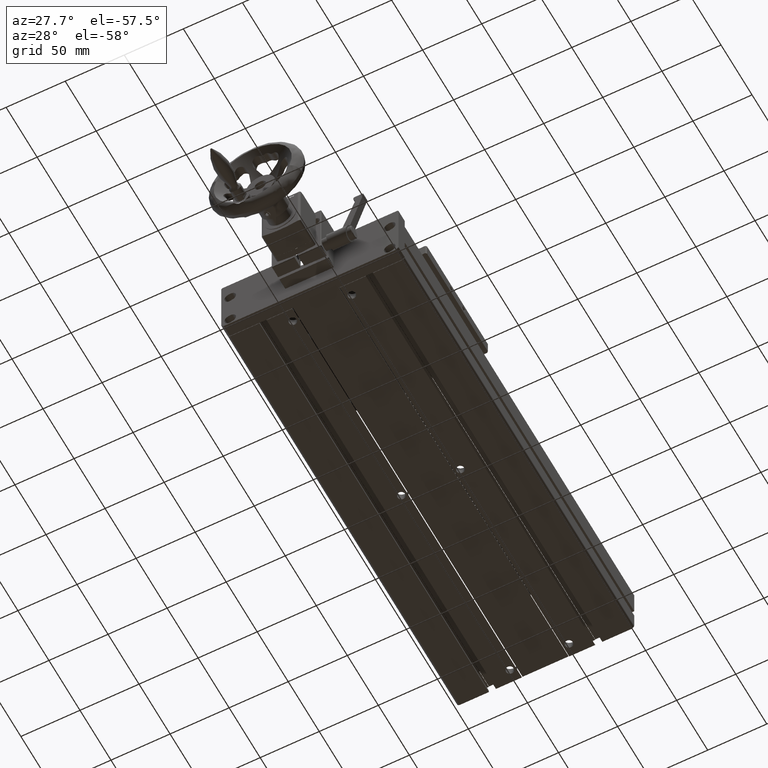
[diagram: clean part render]
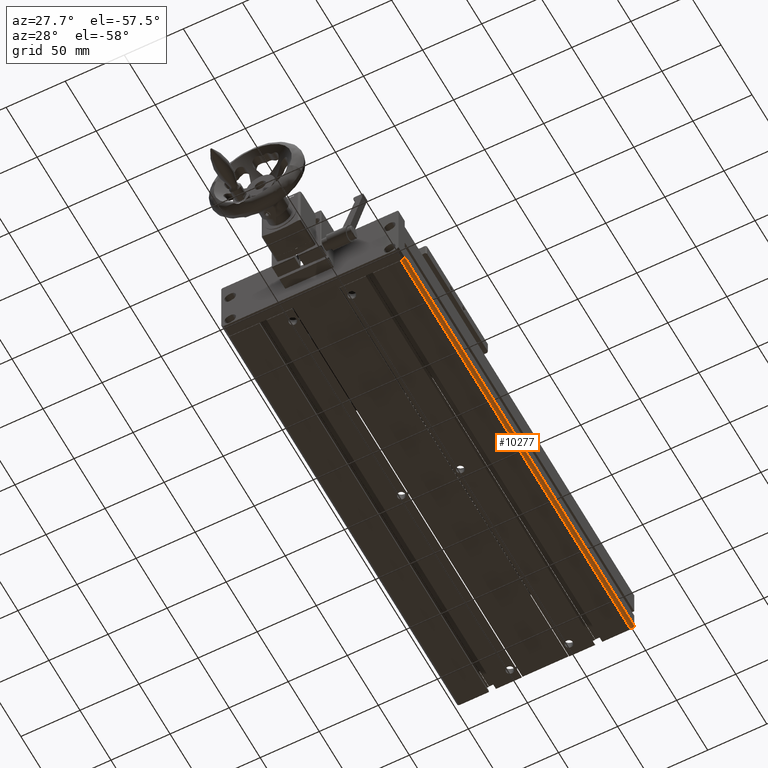
[diagram: same view with one face highlighted and labeled with its STEP entity id]
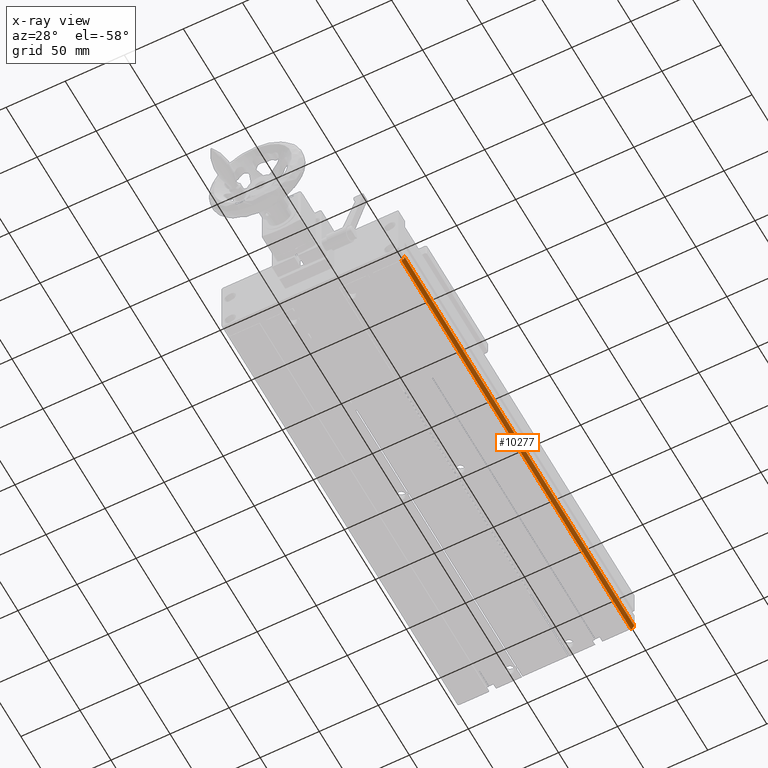
[diagram: x-ray of the same camera — body ghosted, the highlighted face saturated]
A machine part, auxiliary view. The second image highlights one B-rep face of the part: STEP entity #10277.
The next image is the same camera in x-ray: the body ghosted, the highlighted face saturated — about 0% of this face is hidden behind the body in this view.
In plain terms, the highlighted cylindrical surface (edge-blend (fillet) strip) has radius 3 mm, axis along (0, 1, -0).
Its self-contained STEP definition (entity closure, byte-faithful):
#480 = EDGE_CURVE ( 'NONE', #20785, #20923, #44237, .T. ) ;
#988 = AXIS2_PLACEMENT_3D ( 'NONE', #11728, #14206, #22059 ) ;
#1333 = CARTESIAN_POINT ( 'NONE',  ( 47.17352052019974451, -133.0472645979090487, -17.00000000000123634 ) ) ;
#2345 = ORIENTED_EDGE ( 'NONE', *, *, #480, .T. ) ;
#3133 = CIRCLE ( 'NONE', #988, 3.000000000000058176 ) ;
#4310 = DIRECTION ( 'NONE',  ( 3.491481338843133355E-15, 1.000000000000000000, -3.657132581846951845E-29 ) ) ;
#5556 = VERTEX_POINT ( 'NONE', #26583 ) ;
#5739 = VECTOR ( 'NONE', #7830, 1000.000000000000000 ) ;
#7830 = DIRECTION ( 'NONE',  ( 3.491481338843133355E-15, 1.000000000000000000, -3.657132581846951845E-29 ) ) ;
#8945 = CARTESIAN_POINT ( 'NONE',  ( 44.17352052020046216, 236.9527354020909797, -20.00000000000135003 ) ) ;
#10277 = ADVANCED_FACE ( 'NONE', ( #40623 ), #36819, .T. ) ;
#10551 = LINE ( 'NONE', #41465, #5739 ) ;
#11728 = CARTESIAN_POINT ( 'NONE',  ( 44.17352052020095954, 236.9527354020909797, -17.00000000000123634 ) ) ;
#11771 = AXIS2_PLACEMENT_3D ( 'NONE', #39049, #4310, #17988 ) ;
#12537 = EDGE_CURVE ( 'NONE', #5556, #20923, #3133, .T. ) ;
#12698 = ORIENTED_EDGE ( 'NONE', *, *, #33907, .T. ) ;
#14206 = DIRECTION ( 'NONE',  ( 3.491481338843133355E-15, 1.000000000000000000, -3.657132581846951845E-29 ) ) ;
#17988 = DIRECTION ( 'NONE',  ( 4.625929269271396181E-15, 0.000000000000000000, 1.000000000000000000 ) ) ;
#20684 = EDGE_CURVE ( 'NONE', #33090, #5556, #10551, .T. ) ;
#20785 = VERTEX_POINT ( 'NONE', #33162 ) ;
#20923 = VERTEX_POINT ( 'NONE', #8945 ) ;
#22059 = DIRECTION ( 'NONE',  ( 4.625929269271396181E-15, 0.000000000000000000, 1.000000000000000000 ) ) ;
#26537 = DIRECTION ( 'NONE',  ( 4.625929269271396181E-15, 0.000000000000000000, 1.000000000000000000 ) ) ;
#26583 = CARTESIAN_POINT ( 'NONE',  ( 47.17352052020107323, 236.9527354020909797, -17.00000000000123634 ) ) ;
#26760 = CARTESIAN_POINT ( 'NONE',  ( 44.17352052019968056, -133.0472645979089918, -17.00000000000123634 ) ) ;
#27204 = CARTESIAN_POINT ( 'NONE',  ( 44.17352052019918318, -133.0472645979089918, -20.00000000000135003 ) ) ;
#28274 = EDGE_LOOP ( 'NONE', ( #37947, #33487, #12698, #2345 ) ) ;
#30349 = DIRECTION ( 'NONE',  ( 3.491481338843133355E-15, 1.000000000000000000, -3.657132581846951845E-29 ) ) ;
#33090 = VERTEX_POINT ( 'NONE', #1333 ) ;
#33162 = CARTESIAN_POINT ( 'NONE',  ( 44.17352052019918318, -133.0472645979089918, -20.00000000000135003 ) ) ;
#33487 = ORIENTED_EDGE ( 'NONE', *, *, #20684, .F. ) ;
#33907 = EDGE_CURVE ( 'NONE', #33090, #20785, #41855, .T. ) ;
#36819 = CYLINDRICAL_SURFACE ( 'NONE', #42605, 3.000000000000058176 ) ;
#37947 = ORIENTED_EDGE ( 'NONE', *, *, #12537, .F. ) ;
#38915 = VECTOR ( 'NONE', #40849, 1000.000000000000000 ) ;
#39049 = CARTESIAN_POINT ( 'NONE',  ( 44.17352052019968056, -133.0472645979089918, -17.00000000000123634 ) ) ;
#40623 = FACE_OUTER_BOUND ( 'NONE', #28274, .T. ) ;
#40849 = DIRECTION ( 'NONE',  ( 3.491481338843133355E-15, 1.000000000000000000, -3.657132581846951845E-29 ) ) ;
#41465 = CARTESIAN_POINT ( 'NONE',  ( 47.17352052019974451, -133.0472645979090487, -17.00000000000123634 ) ) ;
#41855 = CIRCLE ( 'NONE', #11771, 3.000000000000058176 ) ;
#42605 = AXIS2_PLACEMENT_3D ( 'NONE', #26760, #30349, #26537 ) ;
#44237 = LINE ( 'NONE', #27204, #38915 ) ;